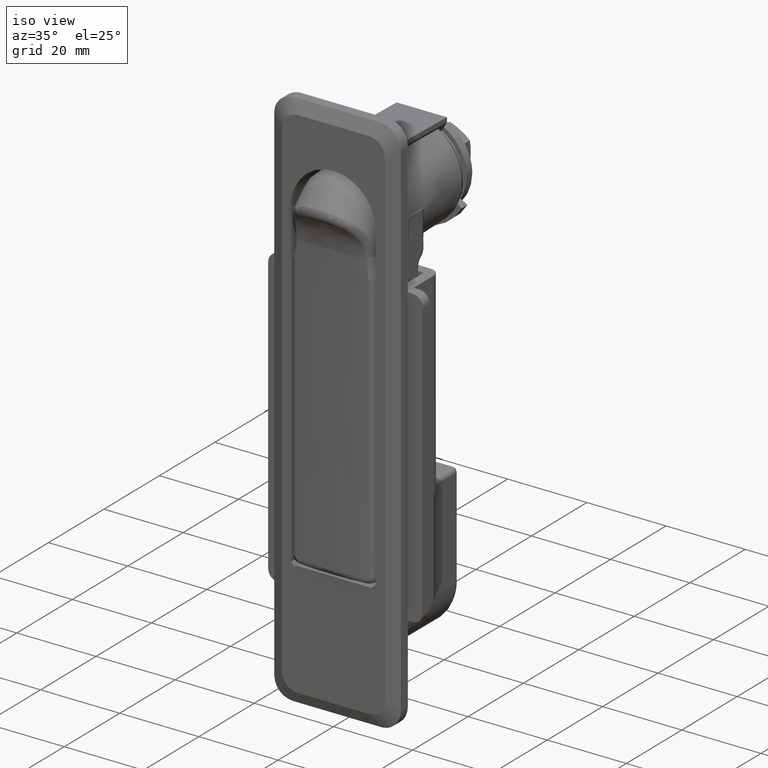
[diagram: clean part render]
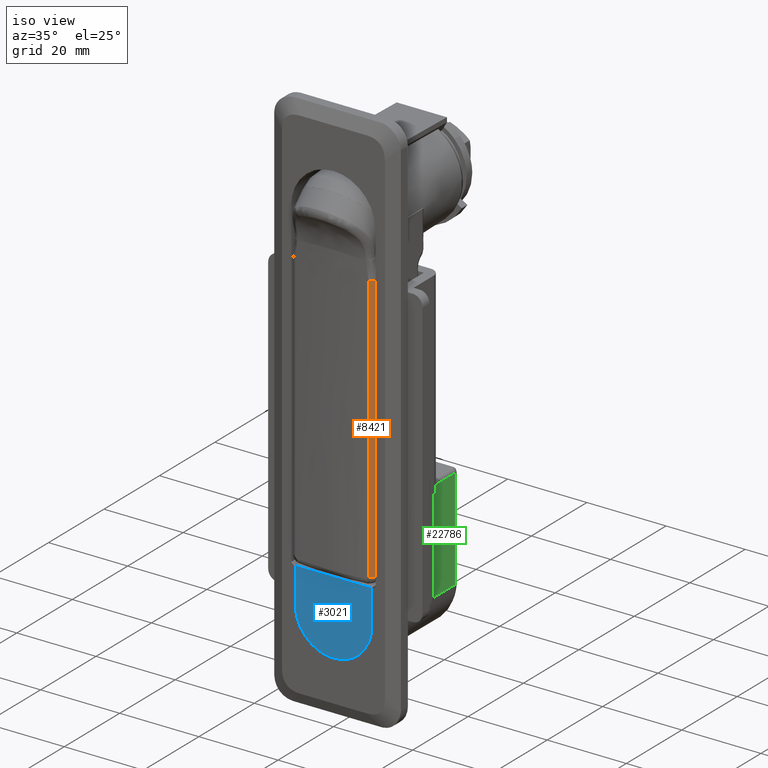
[diagram: same view with three faces highlighted in distinct colors, each labeled with its STEP entity id]
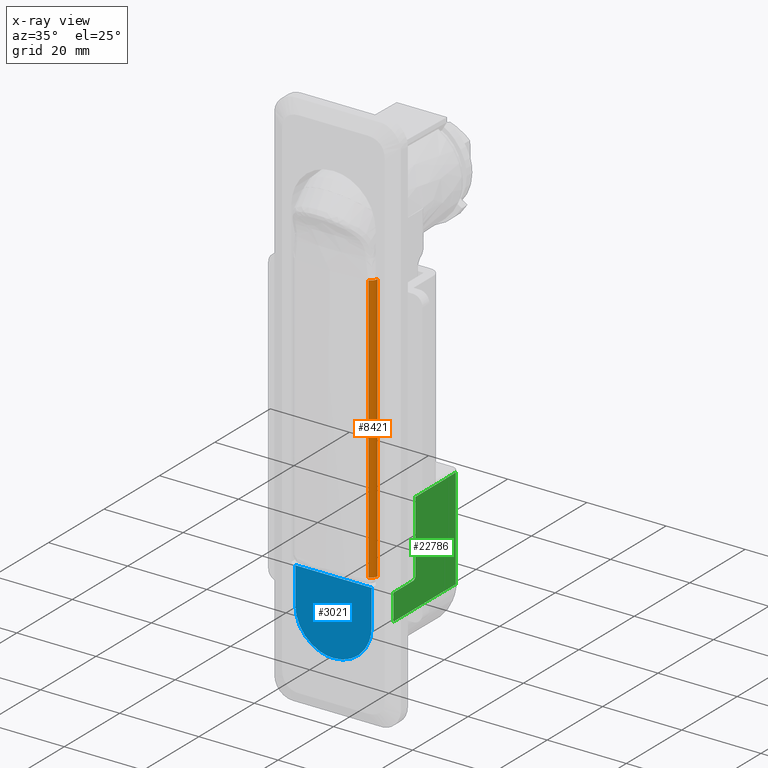
[diagram: x-ray of the same camera — body ghosted, the three highlighted faces saturated]
A machine part, iso view with three faces highlighted in distinct colors.
The next image is the same camera in x-ray (body ghosted, the three faces saturated) — at least one of them is partly hidden behind the body in this view.
Their STEP definitions:

[orange] entity #8421 — the highlighted face is a freeform B-spline surface patch.
#8275=CARTESIAN_POINT('',(0.888855024342689,-10.500000000000000,-79.499797333296385));
#8276=VERTEX_POINT('',#8275);
#8277=CARTESIAN_POINT('',(-0.593287196272524,-9.230769230769180,-79.499797333296385));
#8278=VERTEX_POINT('',#8277);
#8279=CARTESIAN_POINT('',(0.888855024342689,-10.500000000000000,-79.499797333296385));
#8280=CARTESIAN_POINT('',(0.656407245576239,-10.500377122193530,-79.499797333296442));
#8281=CARTESIAN_POINT('',(0.291684019231548,-10.413411173286031,-79.499797333296357));
#8282=CARTESIAN_POINT('',(-0.179115558042674,-10.093066696012540,-79.499797333296627));
#8283=CARTESIAN_POINT('',(-0.469385109244124,-9.704284979932099,-79.499797333296115));
#8284=CARTESIAN_POINT('',(-0.571184181774782,-9.372896318512771,-79.499797333296570));
#8285=CARTESIAN_POINT('',(-0.593287196272524,-9.230769230769180,-79.499797333296385));
#8286=B_SPLINE_CURVE_WITH_KNOTS('',3,(#8279,#8280,#8281,#8282,#8283,#8284,#8285),.UNSPECIFIED.,.F.,.U.,(4,1,1,1,4),(0.000000284652811,0.697126984346454,1.095417866033051,1.693003455195448,2.124548437532454),.UNSPECIFIED.);
#8287=EDGE_CURVE('',#8276,#8278,#8286,.T.);
#8379=CARTESIAN_POINT('',(-0.601502759172193,-9.169804820651851,-9.925037371820286));
#8380=CARTESIAN_POINT('',(-0.601502759172193,-9.169804820651851,-81.239166332333284));
#8381=CARTESIAN_POINT('',(-0.439788118995804,-10.589156001436834,-9.925037371820288));
#8382=CARTESIAN_POINT('',(-0.439788118995804,-10.589156001436834,-81.239166332333269));
#8383=CARTESIAN_POINT('',(0.985761611633954,-10.496866431362388,-9.925037371820286));
#8384=CARTESIAN_POINT('',(0.985761611633954,-10.496866431362388,-81.239166332333298));
#8392=(BOUNDED_SURFACE()B_SPLINE_SURFACE(1,2,((#8379,#8381,#8383),(#8380,#8382,#8384)),.UNSPECIFIED.,.F.,.F.,.U.)B_SPLINE_SURFACE_WITH_KNOTS((2,2),(3,3),(0.0,71.314128960513003),(0.0,2.399949098807110),.UNSPECIFIED.)GEOMETRIC_REPRESENTATION_ITEM()RATIONAL_B_SPLINE_SURFACE(((1.0,0.722138036305856,0.994459325963101),(1.0,0.722138036305856,0.994459325963101)))REPRESENTATION_ITEM('')SURFACE());
#8393=CARTESIAN_POINT('',(0.888855024342680,-10.500000000000000,-11.621982736734340));
#8394=VERTEX_POINT('',#8393);
#8395=CARTESIAN_POINT('',(-0.593287196272527,-9.230769230769170,-11.621982736734340));
#8396=VERTEX_POINT('',#8395);
#8397=CARTESIAN_POINT('',(0.888855024342680,-10.500000000000000,-11.621982736734340));
#8398=CARTESIAN_POINT('',(0.745008601690116,-10.500043271704421,-11.621982736734340));
#8399=CARTESIAN_POINT('',(0.435185329912388,-10.455137529297859,-11.621982736734349));
#8400=CARTESIAN_POINT('',(0.031837676314334,-10.258528048629000,-11.621982736734340));
#8401=CARTESIAN_POINT('',(-0.261476626112214,-9.983787520086571,-11.621982736734379));
#8402=CARTESIAN_POINT('',(-0.482874099915739,-9.650256994429970,-11.621982736734290));
#8403=CARTESIAN_POINT('',(-0.567861117154457,-9.394805221716407,-11.621982736734370));
#8404=CARTESIAN_POINT('',(-0.593287196272527,-9.230769230769170,-11.621982736734340));
#8405=B_SPLINE_CURVE_WITH_KNOTS('',3,(#8397,#8398,#8399,#8400,#8401,#8402,#8403,#8404),.UNSPECIFIED.,.F.,.U.,(4,1,1,1,1,4),(0.000000284653565,0.431545266990370,0.929511933994814,1.327819797753604,1.626608104104405,2.124548437532464),.UNSPECIFIED.);
#8406=EDGE_CURVE('',#8394,#8396,#8405,.T.);
#8407=ORIENTED_EDGE('',*,*,#8406,.T.);
#8408=CARTESIAN_POINT('',(-0.593287196272524,-9.230769230769180,-79.499797333296385));
#8409=CARTESIAN_POINT('',(-0.593287196272527,-9.230769230769170,-11.621982736734340));
#8410=QUASI_UNIFORM_CURVE('',1,(#8408,#8409),.UNSPECIFIED.,.F.,.U.);
#8411=EDGE_CURVE('',#8278,#8396,#8410,.T.);
#8412=ORIENTED_EDGE('',*,*,#8411,.F.);
#8413=ORIENTED_EDGE('',*,*,#8287,.F.);
#8414=CARTESIAN_POINT('',(0.888855024342680,-10.500000000000000,-11.621982736734340));
#8415=CARTESIAN_POINT('',(0.888855024342689,-10.500000000000000,-79.499797333296385));
#8416=QUASI_UNIFORM_CURVE('',1,(#8414,#8415),.UNSPECIFIED.,.F.,.U.);
#8417=EDGE_CURVE('',#8394,#8276,#8416,.T.);
#8418=ORIENTED_EDGE('',*,*,#8417,.F.);
#8419=EDGE_LOOP('',(#8407,#8412,#8413,#8418));
#8420=FACE_OUTER_BOUND('',#8419,.T.);
#8421=ADVANCED_FACE('',(#8420),#8392,.T.);

[blue] entity #3021 — the highlighted face is a freeform B-spline surface patch.
#2961=CARTESIAN_POINT('',(0.0,10.614034531290519,-81.068432469516395));
#2962=CARTESIAN_POINT('',(0.0,-10.614034013624179,-81.068432469516395));
#2963=CARTESIAN_POINT('',(0.0,10.614034531290519,-101.581569364667400));
#2964=CARTESIAN_POINT('',(0.0,-10.614034013624179,-101.581569364667400));
#2965=B_SPLINE_SURFACE_WITH_KNOTS('',1,1,((#2961,#2963),(#2962,#2964)),.UNSPECIFIED.,.F.,.F.,.U.,(2,2),(2,2),(0.0,21.228068544914699),(0.0,20.513136895151021),.UNSPECIFIED.);
#2966=CARTESIAN_POINT('',(0.0,9.650000000000000,-91.0));
#2967=VERTEX_POINT('',#2966);
#2968=CARTESIAN_POINT('',(0.0,9.650000000000000,-82.0));
#2969=VERTEX_POINT('',#2968);
#2970=CARTESIAN_POINT('',(0.0,9.650000000000000,-91.0));
#2971=CARTESIAN_POINT('',(0.0,9.650000000000000,-82.0));
#2972=QUASI_UNIFORM_CURVE('',1,(#2970,#2971),.UNSPECIFIED.,.F.,.U.);
#2973=EDGE_CURVE('',#2967,#2969,#2972,.T.);
#2974=ORIENTED_EDGE('',*,*,#2973,.F.);
#2975=CARTESIAN_POINT('',(0.0,-0.000001337969715,-100.649999999999910));
#2976=VERTEX_POINT('',#2975);
#2977=CARTESIAN_POINT('',(0.0,9.650000000000000,-91.0));
#2978=CARTESIAN_POINT('',(0.0,9.650176580185789,-91.750028596284693));
#2979=CARTESIAN_POINT('',(0.0,9.501943473000557,-93.013128706859035));
#2980=CARTESIAN_POINT('',(0.0,8.953343464240842,-94.708595776826428));
#2981=CARTESIAN_POINT('',(0.0,8.250467592550006,-96.083803146592032));
#2982=CARTESIAN_POINT('',(0.0,7.151116571246947,-97.585710791153943));
#2983=CARTESIAN_POINT('',(0.0,5.757295484975140,-98.833377281962612));
#2984=CARTESIAN_POINT('',(0.0,4.006126554771896,-99.839563889677322));
#2985=CARTESIAN_POINT('',(0.0,2.171031365830974,-100.483463005998400));
#2986=CARTESIAN_POINT('',(0.0,0.750026262167700,-100.650173680634500));
#2987=CARTESIAN_POINT('',(0.0,-0.000001337969715,-100.649999999999910));
#2988=B_SPLINE_CURVE_WITH_KNOTS('',3,(#2977,#2978,#2979,#2980,#2981,#2982,#2983,#2984,#2985,#2986,#2987),.UNSPECIFIED.,.F.,.U.,(4,1,1,1,1,1,1,1,4),(0.000000156102073,2.250052167393193,3.789570636072790,5.329093170939460,6.868648771872033,9.355484953625201,10.895005627256410,12.908229174539240,15.158280418859031),.UNSPECIFIED.);
#2989=EDGE_CURVE('',#2967,#2976,#2988,.T.);
#2990=ORIENTED_EDGE('',*,*,#2989,.T.);
#2991=CARTESIAN_POINT('',(0.0,-9.650000000000000,-91.0));
#2992=VERTEX_POINT('',#2991);
#2993=CARTESIAN_POINT('',(0.0,-0.000001337969715,-100.649999999999910));
#2994=CARTESIAN_POINT('',(0.0,-0.750031323444230,-100.650177349193400));
#2995=CARTESIAN_POINT('',(0.0,-2.013126517613620,-100.501940436359400));
#2996=CARTESIAN_POINT('',(0.0,-3.708590069189121,-99.953334849222117));
#2997=CARTESIAN_POINT('',(0.0,-5.260201808868077,-99.160460625275164));
#2998=CARTESIAN_POINT('',(0.0,-6.512556055396554,-98.183093832180958));
#2999=CARTESIAN_POINT('',(0.0,-7.635136215278456,-96.959575574315963));
#3000=CARTESIAN_POINT('',(0.0,-8.524215285431433,-95.646626030626834));
#3001=CARTESIAN_POINT('',(0.0,-9.399414766172280,-93.605028604354942));
#3002=CARTESIAN_POINT('',(0.0,-9.650539227521923,-91.986931959893141));
#3003=CARTESIAN_POINT('',(0.0,-9.650000000000000,-91.0));
#3004=B_SPLINE_CURVE_WITH_KNOTS('',3,(#2993,#2994,#2995,#2996,#2997,#2998,#2999,#3000,#3001,#3002,#3003),.UNSPECIFIED.,.F.,.U.,(4,1,1,1,1,1,1,1,4),(0.000000156563150,2.250051944095182,3.789570259426178,5.329092640662090,7.460761363749977,8.526526751928891,10.302890068719490,12.197692125843240,15.158278910645720),.UNSPECIFIED.);
#3005=EDGE_CURVE('',#2976,#2992,#3004,.T.);
#3006=ORIENTED_EDGE('',*,*,#3005,.T.);
#3007=CARTESIAN_POINT('',(0.0,-9.650000000000000,-82.0));
#3008=VERTEX_POINT('',#3007);
#3009=CARTESIAN_POINT('',(0.0,-9.650000000000000,-82.0));
#3010=CARTESIAN_POINT('',(0.0,-9.650000000000000,-91.0));
#3011=QUASI_UNIFORM_CURVE('',1,(#3009,#3010),.UNSPECIFIED.,.F.,.U.);
#3012=EDGE_CURVE('',#3008,#2992,#3011,.T.);
#3013=ORIENTED_EDGE('',*,*,#3012,.F.);
#3014=CARTESIAN_POINT('',(0.0,9.650000000000000,-82.0));
#3015=CARTESIAN_POINT('',(0.0,-9.650000000000000,-82.0));
#3016=QUASI_UNIFORM_CURVE('',1,(#3014,#3015),.UNSPECIFIED.,.F.,.U.);
#3017=EDGE_CURVE('',#2969,#3008,#3016,.T.);
#3018=ORIENTED_EDGE('',*,*,#3017,.F.);
#3019=EDGE_LOOP('',(#2974,#2990,#3006,#3013,#3018));
#3020=FACE_OUTER_BOUND('',#3019,.T.);
#3021=ADVANCED_FACE('',(#3020),#2965,.F.);

[green] entity #22786 — the highlighted face is a freeform B-spline surface patch.
#18013=CARTESIAN_POINT('',(13.0,-11.648000000000140,-65.668000000000006));
#18014=VERTEX_POINT('',#18013);
#21558=CARTESIAN_POINT('',(13.0,-11.648000000000000,-83.500000000000000));
#21559=VERTEX_POINT('',#21558);
#21566=CARTESIAN_POINT('',(12.0,-11.648000000000000,-84.500000000000000));
#21567=VERTEX_POINT('',#21566);
#21573=CARTESIAN_POINT('',(13.0,-11.648000000000000,-83.500000000000000));
#21574=CARTESIAN_POINT('',(13.000132500863501,-11.648000000000010,-83.630916564449933));
#21575=CARTESIAN_POINT('',(12.947852366808020,-11.648000000000000,-83.892609639809990));
#21576=CARTESIAN_POINT('',(12.716368018953320,-11.648000000000000,-84.239516737476023));
#21577=CARTESIAN_POINT('',(12.376340873681229,-11.648000000000000,-84.454650383606278));
#21578=CARTESIAN_POINT('',(12.114536262939881,-11.648000000000019,-84.500048807725975));
#21579=CARTESIAN_POINT('',(12.0,-11.648000000000000,-84.500000000000000));
#21580=B_SPLINE_CURVE_WITH_KNOTS('',3,(#21573,#21574,#21575,#21576,#21577,#21578,#21579),.UNSPECIFIED.,.F.,.U.,(4,1,1,1,4),(0.000000232514220,0.392740419111709,0.785477253846590,1.227308238452872,1.570953883298339),.UNSPECIFIED.);
#21581=EDGE_CURVE('',#21559,#21567,#21580,.T.);
#22201=CARTESIAN_POINT('',(27.500000000000000,-11.648000000000140,-65.668000000000006));
#22202=VERTEX_POINT('',#22201);
#22253=CARTESIAN_POINT('',(27.500000000000000,-11.648000000000000,-91.127122652352000));
#22254=VERTEX_POINT('',#22253);
#22344=CARTESIAN_POINT('',(27.500000000000000,-11.648000000000000,-91.127122652352000));
#22345=CARTESIAN_POINT('',(27.500000000000000,-11.648000000000140,-65.668000000000006));
#22346=QUASI_UNIFORM_CURVE('',1,(#22344,#22345),.UNSPECIFIED.,.F.,.U.);
#22347=EDGE_CURVE('',#22254,#22202,#22346,.T.);
#22685=CARTESIAN_POINT('',(4.999999999999890,-11.648000000000000,-91.127122652352000));
#22686=VERTEX_POINT('',#22685);
#22687=CARTESIAN_POINT('',(4.999999999999890,-11.648000000000000,-91.127122652352000));
#22688=CARTESIAN_POINT('',(27.500000000000000,-11.648000000000000,-91.127122652352000));
#22689=QUASI_UNIFORM_CURVE('',1,(#22687,#22688),.UNSPECIFIED.,.F.,.U.);
#22690=EDGE_CURVE('',#22686,#22254,#22689,.T.);
#22754=CARTESIAN_POINT('',(3.876125043609251,-11.648000000000000,-64.396316007849492));
#22755=CARTESIAN_POINT('',(3.876125043609251,-11.648000000000000,-92.398804595901865));
#22756=CARTESIAN_POINT('',(28.623875559887669,-11.648000000000000,-64.396316007849492));
#22757=CARTESIAN_POINT('',(28.623875559887669,-11.648000000000000,-92.398804595901865));
#22758=B_SPLINE_SURFACE_WITH_KNOTS('',1,1,((#22754,#22756),(#22755,#22757)),.UNSPECIFIED.,.F.,.F.,.U.,(2,2),(2,2),(0.0,28.002488588052369),(0.0,24.747750516278419),.UNSPECIFIED.);
#22759=ORIENTED_EDGE('',*,*,#22690,.T.);
#22760=ORIENTED_EDGE('',*,*,#22347,.T.);
#22761=CARTESIAN_POINT('',(13.0,-11.648000000000140,-65.668000000000006));
#22762=CARTESIAN_POINT('',(27.500000000000000,-11.648000000000140,-65.668000000000006));
#22763=QUASI_UNIFORM_CURVE('',1,(#22761,#22762),.UNSPECIFIED.,.F.,.U.);
#22764=EDGE_CURVE('',#18014,#22202,#22763,.T.);
#22765=ORIENTED_EDGE('',*,*,#22764,.F.);
#22766=CARTESIAN_POINT('',(13.0,-11.648000000000000,-83.500000000000000));
#22767=CARTESIAN_POINT('',(13.0,-11.648000000000140,-65.668000000000006));
#22768=QUASI_UNIFORM_CURVE('',1,(#22766,#22767),.UNSPECIFIED.,.F.,.U.);
#22769=EDGE_CURVE('',#21559,#18014,#22768,.T.);
#22770=ORIENTED_EDGE('',*,*,#22769,.F.);
#22771=ORIENTED_EDGE('',*,*,#21581,.T.);
#22772=CARTESIAN_POINT('',(4.999999999999920,-11.648000000000140,-84.500000000000000));
#22773=VERTEX_POINT('',#22772);
#22774=CARTESIAN_POINT('',(12.0,-11.648000000000000,-84.500000000000000));
#22775=CARTESIAN_POINT('',(4.999999999999920,-11.648000000000140,-84.500000000000000));
#22776=QUASI_UNIFORM_CURVE('',1,(#22774,#22775),.UNSPECIFIED.,.F.,.U.);
#22777=EDGE_CURVE('',#21567,#22773,#22776,.T.);
#22778=ORIENTED_EDGE('',*,*,#22777,.T.);
#22779=CARTESIAN_POINT('',(4.999999999999920,-11.648000000000140,-84.500000000000000));
#22780=CARTESIAN_POINT('',(4.999999999999890,-11.648000000000000,-91.127122652352000));
#22781=QUASI_UNIFORM_CURVE('',1,(#22779,#22780),.UNSPECIFIED.,.F.,.U.);
#22782=EDGE_CURVE('',#22773,#22686,#22781,.T.);
#22783=ORIENTED_EDGE('',*,*,#22782,.T.);
#22784=EDGE_LOOP('',(#22759,#22760,#22765,#22770,#22771,#22778,#22783));
#22785=FACE_OUTER_BOUND('',#22784,.T.);
#22786=ADVANCED_FACE('',(#22785),#22758,.T.);